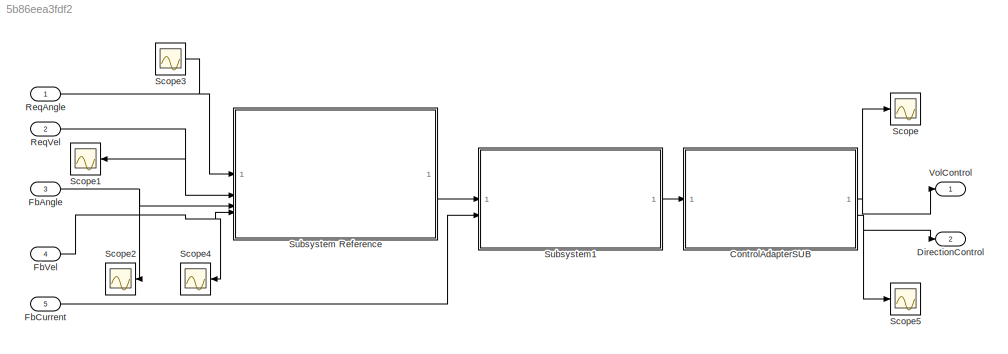
MODEL slx_5b86eea3fdf2
KIND model
CONFIG AbsTol = auto
CONFIG EnableMultiTasking = off
CONFIG FixedStep = 0.001
CONFIG MaxStep = auto
CONFIG MinStep = auto
CONFIG RelTol = 1e-3
CONFIG SampleTimeConstraint = Unconstrained
CONFIG SolverName = ode1be
CONFIG StartTime = 0.0
CONFIG StopTime = 10.0
BLOCK [SubSystem] ControlAdapterSUB
  ReferencedSubsystem = ControlAdapterSUB2022
BLOCK [Outport] DirectionControl
  OutDataTypeStr = double
  Port = 2
  PortDimensions = 1
  SampleTime = 0
  SamplingMode = Sample based
  SignalType = real
BLOCK [Inport] FbAngle
  OutDataTypeStr = double
  Port = 3
  PortDimensions = 1
  SamplingMode = Sample based
  SignalType = real
BLOCK [Inport] FbCurrent
  OutDataTypeStr = double
  Port = 5
  PortDimensions = 1
  SampleTime = 0
  SamplingMode = Sample based
  SignalType = real
BLOCK [Inport] FbVel
  OutDataTypeStr = double
  Port = 4
  PortDimensions = 1
  SamplingMode = Sample based
  SignalType = real
BLOCK [Inport] ReqAngle
  OutDataTypeStr = double
  PortDimensions = 1
  SamplingMode = Sample based
  SignalType = real
BLOCK [Inport] ReqVel
  OutDataTypeStr = double
  Port = 2
  PortDimensions = 1
  SamplingMode = Sample based
  SignalType = real
BLOCK [Scope] Scope
  Floating = off
  NumInputPorts = 1
  ScopeSpecificationString = Simulink.scopes.TimeScopeBlockCfg('CurrentConfiguration', extmgr.ConfigurationSet(extmgr.Configuration('Core','General UI',true),extmgr.Configuration('Core','Source UI',true),extmgr.Configuration('Sources','WiredSimulink',true,'DataLoggingVariableName','ScopeData4'),extmgr.Configuration('Visuals','Time Domain',true,'SerializedDisplays',{struct('MinYLimReal','-0.09223','MaxYLimReal','0.83006','YLab...<+1409ch>
BLOCK [Scope] Scope1
  Floating = off
  NameLocation = top
  NumInputPorts = 1
  ScopeSpecificationString = Simulink.scopes.TimeScopeBlockCfg('CurrentConfiguration', extmgr.ConfigurationSet(extmgr.Configuration('Core','General UI',true),extmgr.Configuration('Core','Source UI',true),extmgr.Configuration('Sources','WiredSimulink',true,'DataLoggingVariableName','ScopeData1'),extmgr.Configuration('Visuals','Time Domain',true,'SerializedDisplays',{struct('MinYLimReal','-0.41672','MaxYLimReal','0.41472','YLab...<+1396ch>
BLOCK [Scope] Scope2
  Floating = off
  NameLocation = top
  NumInputPorts = 1
  ScopeSpecificationString = Simulink.scopes.TimeScopeBlockCfg('CurrentConfiguration', extmgr.ConfigurationSet(extmgr.Configuration('Core','General UI',true),extmgr.Configuration('Core','Source UI',true),extmgr.Configuration('Sources','WiredSimulink',true),extmgr.Configuration('Visuals','Time Domain',true,'SerializedDisplays',{struct('MinYLimReal','-0.39152','MaxYLimReal','0.0435','YLabelReal','','MinYLimMag','0.00000','MaxYL...<+1358ch>
BLOCK [Scope] Scope3
  Floating = off
  NameLocation = top
  NumInputPorts = 1
  ScopeSpecificationString = Simulink.scopes.TimeScopeBlockCfg('CurrentConfiguration', extmgr.ConfigurationSet(extmgr.Configuration('Core','General UI',true),extmgr.Configuration('Core','Source UI',true),extmgr.Configuration('Sources','WiredSimulink',true,'DataLoggingVariableName','ScopeData2'),extmgr.Configuration('Visuals','Time Domain',true,'SerializedDisplays',{struct('MinYLimReal','-1.2472','MaxYLimReal','1.37083','YLabe...<+1394ch>
BLOCK [Scope] Scope4
  Floating = off
  NameLocation = top
  NumInputPorts = 1
  ScopeSpecificationString = Simulink.scopes.TimeScopeBlockCfg('CurrentConfiguration', extmgr.ConfigurationSet(extmgr.Configuration('Core','General UI',true),extmgr.Configuration('Core','Source UI',true),extmgr.Configuration('Sources','WiredSimulink',true,'DataLoggingVariableName','ScopeData3'),extmgr.Configuration('Visuals','Time Domain',true,'SerializedDisplays',{struct('MinYLimReal','-0.08334','MaxYLimReal','0.08294','YLab...<+1364ch>
BLOCK [Scope] Scope5
  Floating = off
  NumInputPorts = 1
  ScopeSpecificationString = Simulink.scopes.TimeScopeBlockCfg('CurrentConfiguration', extmgr.ConfigurationSet(extmgr.Configuration('Core','General UI',true),extmgr.Configuration('Core','Source UI',true),extmgr.Configuration('Sources','WiredSimulink',true,'DataLoggingVariableName','ScopeData5'),extmgr.Configuration('Visuals','Time Domain',true,'SerializedDisplays',{struct('MinYLimReal','-0.125','MaxYLimReal','1.125','YLabelRe...<+1366ch>
BLOCK [SubSystem] Subsystem Reference
  ReferencedSubsystem = HighLevelControlSUB2022
BLOCK [SubSystem] Subsystem1
  ReferencedSubsystem = LowLevelControllerSUB2022
BLOCK [Outport] VolControl
  OutDataTypeStr = double
  PortDimensions = 1
  SampleTime = 0
  SamplingMode = Sample based
  SignalType = real
NET ControlAdapterSUB:1 -> Scope:1, VolControl:1
NET ControlAdapterSUB:2 -> DirectionControl:1, Scope5:1
NET FbAngle:1 -> Scope2:1, Subsystem Reference:3
LINE FbCurrent:1 -> Subsystem1:2
NET FbVel:1 -> Scope4:1, Subsystem Reference:4
NET ReqAngle:1 -> Scope3:1, Subsystem Reference:1
NET ReqVel:1 -> Scope1:1, Subsystem Reference:2
LINE Subsystem Reference:1 -> Subsystem1:1
LINE Subsystem1:1 -> ControlAdapterSUB:1
note: NET lines group one-source signal fan-out (src -> all destinations, sorted); 1:1 wires keep LINE
